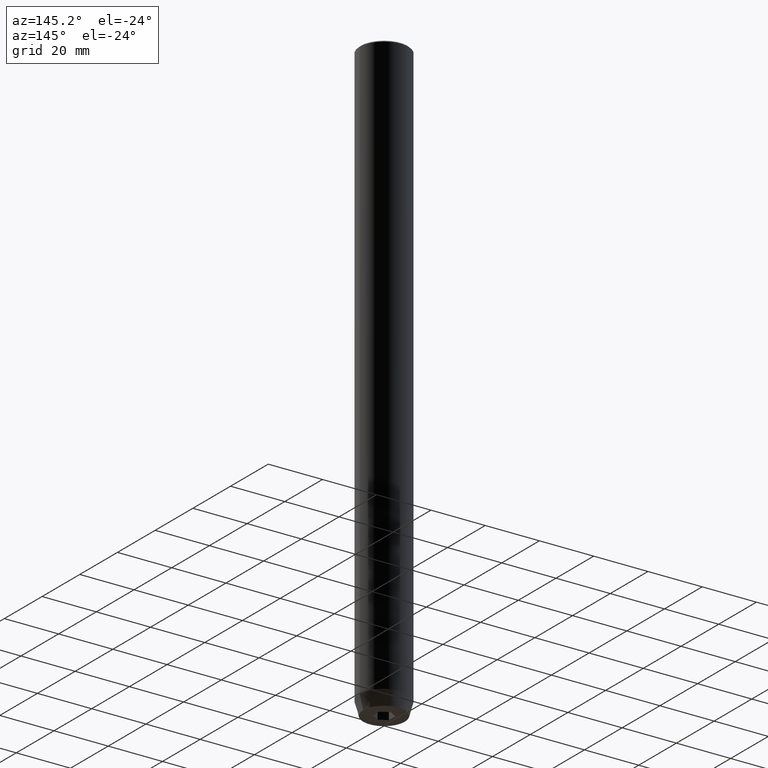
[diagram: clean part render]
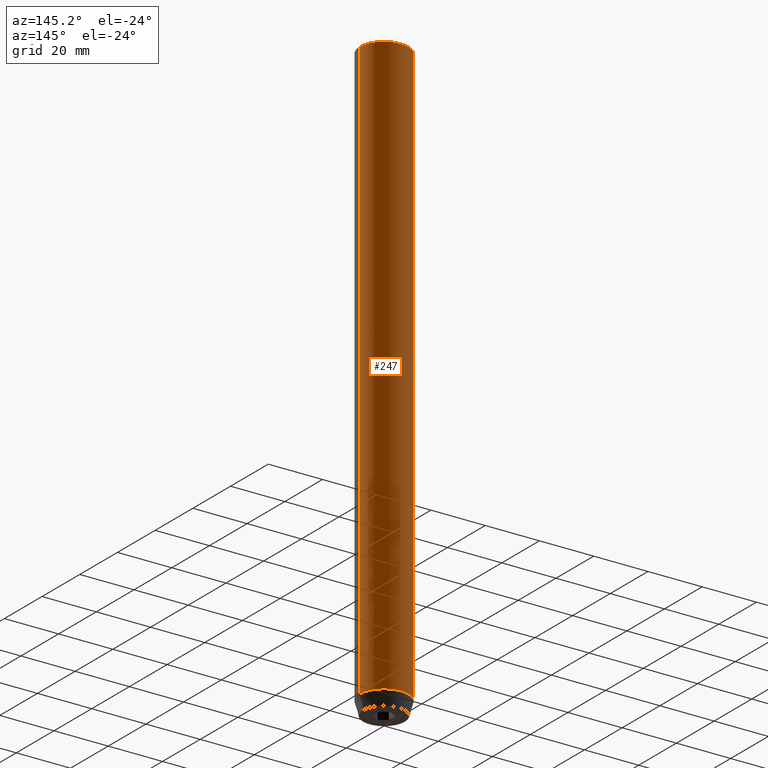
[diagram: same view with one face highlighted and labeled with its STEP entity id]
A machine part, auxiliary view. The second image highlights one B-rep face of the part: STEP entity #247.
In plain terms, the highlighted cylindrical surface (edge-blend (fillet) strip) has radius 9 mm, axis along (-0, -0, 1).
Its self-contained STEP definition (entity closure, byte-faithful):
#1 = EDGE_LOOP ( 'NONE', ( #4, #383, #238, #505 ) ) ;
#4 = ORIENTED_EDGE ( 'NONE', *, *, #68, .T. ) ;
#5 = VECTOR ( 'NONE', #581, 1000.000000000000000 ) ;
#32 = EDGE_CURVE ( 'NONE', #49, #452, #492, .T. ) ;
#41 = VECTOR ( 'NONE', #265, 1000.000000000000000 ) ;
#49 = VERTEX_POINT ( 'NONE', #182 ) ;
#68 = EDGE_CURVE ( 'NONE', #498, #49, #81, .T. ) ;
#81 = CIRCLE ( 'NONE', #377, 9.000000000000000000 ) ;
#134 = CARTESIAN_POINT ( 'NONE',  ( -9.000000000000000000, 1.102182119232617714E-15, -0.4999999999999952260 ) ) ;
#139 = CARTESIAN_POINT ( 'NONE',  ( 0.000000000000000000, 0.000000000000000000, 0.000000000000000000 ) ) ;
#163 = DIRECTION ( 'NONE',  ( -0.000000000000000000, -0.000000000000000000, 1.000000000000000000 ) ) ;
#165 = DIRECTION ( 'NONE',  ( 1.000000000000000000, 0.000000000000000000, 0.000000000000000000 ) ) ;
#182 = CARTESIAN_POINT ( 'NONE',  ( -9.000000000000000000, 1.102182119232617714E-15, -214.9999999999999716 ) ) ;
#209 = CARTESIAN_POINT ( 'NONE',  ( 9.000000000000000000, 0.000000000000000000, -0.4999999999999952260 ) ) ;
#212 = AXIS2_PLACEMENT_3D ( 'NONE', #139, #163, #491 ) ;
#223 = FACE_OUTER_BOUND ( 'NONE', #1, .T. ) ;
#225 = DIRECTION ( 'NONE',  ( 1.000000000000000000, 0.000000000000000000, 0.000000000000000000 ) ) ;
#227 = CIRCLE ( 'NONE', #370, 9.000000000000000000 ) ;
#238 = ORIENTED_EDGE ( 'NONE', *, *, #585, .T. ) ;
#247 = ADVANCED_FACE ( 'NONE', ( #223 ), #577, .T. ) ;
#262 = CARTESIAN_POINT ( 'NONE',  ( 0.000000000000000000, 0.000000000000000000, -0.4999999999999952260 ) ) ;
#265 = DIRECTION ( 'NONE',  ( -0.000000000000000000, -0.000000000000000000, 1.000000000000000000 ) ) ;
#342 = CARTESIAN_POINT ( 'NONE',  ( 9.000000000000000000, 0.000000000000000000, 0.000000000000000000 ) ) ;
#349 = CARTESIAN_POINT ( 'NONE',  ( -9.000000000000000000, 1.102182119232617714E-15, 0.000000000000000000 ) ) ;
#351 = VERTEX_POINT ( 'NONE', #209 ) ;
#370 = AXIS2_PLACEMENT_3D ( 'NONE', #262, #436, #165 ) ;
#377 = AXIS2_PLACEMENT_3D ( 'NONE', #394, #550, #225 ) ;
#383 = ORIENTED_EDGE ( 'NONE', *, *, #32, .T. ) ;
#394 = CARTESIAN_POINT ( 'NONE',  ( 0.000000000000000000, 0.000000000000000000, -214.9999999999999716 ) ) ;
#436 = DIRECTION ( 'NONE',  ( 0.000000000000000000, 0.000000000000000000, -1.000000000000000000 ) ) ;
#439 = LINE ( 'NONE', #342, #41 ) ;
#452 = VERTEX_POINT ( 'NONE', #134 ) ;
#475 = CARTESIAN_POINT ( 'NONE',  ( 9.000000000000000000, 0.000000000000000000, -214.9999999999999716 ) ) ;
#491 = DIRECTION ( 'NONE',  ( 1.000000000000000000, 0.000000000000000000, 0.000000000000000000 ) ) ;
#492 = LINE ( 'NONE', #349, #5 ) ;
#498 = VERTEX_POINT ( 'NONE', #475 ) ;
#505 = ORIENTED_EDGE ( 'NONE', *, *, #529, .F. ) ;
#529 = EDGE_CURVE ( 'NONE', #498, #351, #439, .T. ) ;
#550 = DIRECTION ( 'NONE',  ( -0.000000000000000000, -0.000000000000000000, 1.000000000000000000 ) ) ;
#577 = CYLINDRICAL_SURFACE ( 'NONE', #212, 9.000000000000000000 ) ;
#581 = DIRECTION ( 'NONE',  ( -0.000000000000000000, -0.000000000000000000, 1.000000000000000000 ) ) ;
#585 = EDGE_CURVE ( 'NONE', #452, #351, #227, .T. ) ;